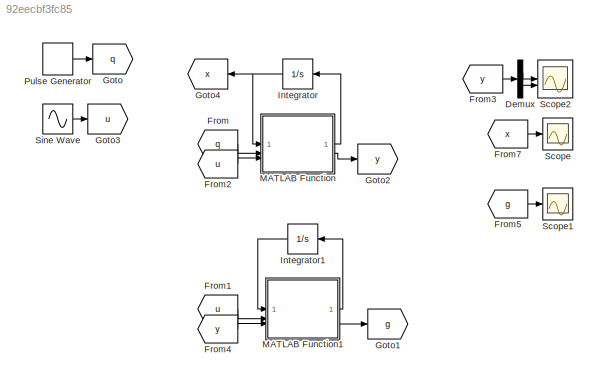
MODEL slx_92eecbf3fc85
KIND model
CONFIG AbsTol = auto
CONFIG EnableMultiTasking = off
CONFIG FixedStep = auto
CONFIG MaxStep = auto
CONFIG MinStep = auto
CONFIG RelTol = 1e-3
CONFIG SampleTimeConstraint = Unconstrained
CONFIG SolverName = VariableStepAuto
CONFIG StartTime = 0.0
CONFIG StopTime = 10.0
BLOCK [Demux] Demux
  Outputs = 2
BLOCK [From] From
  GotoTag = q
BLOCK [From] From1
  GotoTag = u
BLOCK [From] From2
  GotoTag = u
BLOCK [From] From3
  GotoTag = y
BLOCK [From] From4
  GotoTag = y
BLOCK [From] From5
  GotoTag = g
BLOCK [From] From7
  GotoTag = x
BLOCK [Goto] Goto
  GotoTag = q
BLOCK [Goto] Goto1
  GotoTag = g
BLOCK [Goto] Goto2
  GotoTag = y
BLOCK [Goto] Goto3
  GotoTag = u
BLOCK [Goto] Goto4
  GotoTag = x
BLOCK [Integrator] Integrator
  InitialCondition = [0;0;0]
BLOCK [Integrator] Integrator1
  InitialCondition = [0;0]
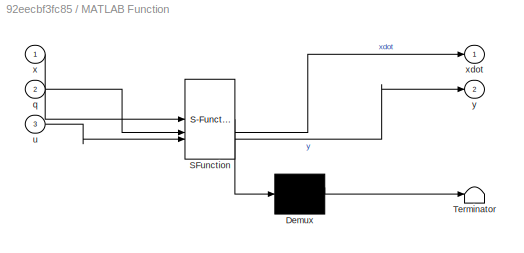
BLOCK [SubSystem] MATLAB Function
  ErrorFcn = Stateflow.Translate.translate
  LibrarySourceBlock = simulink/User-Defined\nFunctions/MATLAB Function
  PermitHierarchicalResolution = ExplicitOnly
  SFBlockType = MATLAB Function
  TreatAsAtomicUnit = on
BLOCK [Demux] MATLAB Function/ Demux 
  Outputs = 1
BLOCK [S-Function] MATLAB Function/ SFunction 
  EnableBusSupport = on
  FunctionName = sf_sfun
  Parameters = A,B,C,L
  PortCounts = [3 3]
  SFcnIsStateOwnerBlock = off
  SFunctionDeploymentMode = off
  Tag = Stateflow S-Function 2
BLOCK [Terminator] MATLAB Function/ Terminator 
BLOCK [Inport] MATLAB Function/q
  Port = 2
BLOCK [Inport] MATLAB Function/u
  Port = 3
BLOCK [Inport] MATLAB Function/x
BLOCK [Outport] MATLAB Function/xdot
BLOCK [Outport] MATLAB Function/y
  Port = 2
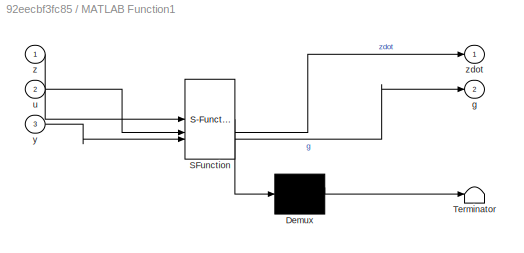
BLOCK [SubSystem] MATLAB Function1
  ErrorFcn = Stateflow.Translate.translate
  LibrarySourceBlock = simulink/User-Defined\nFunctions/MATLAB Function
  PermitHierarchicalResolution = ExplicitOnly
  SFBlockType = MATLAB Function
  TreatAsAtomicUnit = on
BLOCK [Demux] MATLAB Function1/ Demux 
  Outputs = 1
BLOCK [S-Function] MATLAB Function1/ SFunction 
  EnableBusSupport = on
  FunctionName = sf_sfun
  Parameters = E,F,G,M
  PortCounts = [3 3]
  SFcnIsStateOwnerBlock = off
  SFunctionDeploymentMode = off
  Tag = Stateflow S-Function 1
BLOCK [Terminator] MATLAB Function1/ Terminator 
BLOCK [Outport] MATLAB Function1/g
  Port = 2
BLOCK [Inport] MATLAB Function1/u
  Port = 2
BLOCK [Inport] MATLAB Function1/y
  Port = 3
BLOCK [Inport] MATLAB Function1/z
BLOCK [Outport] MATLAB Function1/zdot
BLOCK [DiscretePulseGenerator] Pulse Generator
  Period = 10
  PulseWidth = 5
BLOCK [Scope] Scope
  Floating = off
  NumInputPorts = 1
  ScopeSpecificationString = Simulink.scopes.TimeScopeBlockCfg('CurrentConfiguration', extmgr.ConfigurationSet(extmgr.Configuration('Core','General UI',true),extmgr.Configuration('Core','Source UI',true),extmgr.Configuration('Sources','WiredSimulink',true),extmgr.Configuration('Visuals','Time Domain',true,'SerializedDisplays',{struct('MinYLimReal','-0.12416','MaxYLimReal','1.11742','YLabelReal','','MinYLimMag','0.00000','MaxY...<+1571ch>
BLOCK [Scope] Scope1
  Floating = off
  NumInputPorts = 1
  ScopeSpecificationString = Simulink.scopes.TimeScopeBlockCfg('CurrentConfiguration', extmgr.ConfigurationSet(extmgr.Configuration('Core','General UI',true),extmgr.Configuration('Core','Source UI',true),extmgr.Configuration('Sources','WiredSimulink',true,'DataLoggingVariableName','ScopeData1'),extmgr.Configuration('Visuals','Time Domain',true,'SerializedDisplays',{struct('MinYLimReal','-0.39506','MaxYLimReal','0.39516','YLab...<+1452ch>
BLOCK [Scope] Scope2
  Floating = off
  NumInputPorts = 2
  ScopeSpecificationString = Simulink.scopes.TimeScopeBlockCfg('CurrentConfiguration', extmgr.ConfigurationSet(extmgr.Configuration('Core','General UI',true),extmgr.Configuration('Core','Source UI',true),extmgr.Configuration('Sources','WiredSimulink',true,'DataLoggingVariableName','ScopeData2'),extmgr.Configuration('Visuals','Time Domain',true,'SerializedDisplays',{struct('MinYLimReal','-0.39506','MaxYLimReal','0.39516','YLab...<+2042ch>
BLOCK [Sin] Sine Wave
  SampleTime = 0
LINE Demux:1 -> Scope2:1
LINE Demux:2 -> Scope2:2
LINE From1:1 -> MATLAB Function1:2
LINE From2:1 -> MATLAB Function:3
LINE From3:1 -> Demux:1
LINE From4:1 -> MATLAB Function1:3
LINE From5:1 -> Scope1:1
LINE From7:1 -> Scope:1
LINE From:1 -> MATLAB Function:2
LINE Integrator1:1 -> MATLAB Function1:1
NET Integrator:1 -> Goto4:1, MATLAB Function:1
LINE MATLAB Function1:1 -> Integrator1:1
LINE MATLAB Function1:2 -> Goto1:1
LINE MATLAB Function:1 -> Integrator:1
LINE MATLAB Function:2 -> Goto2:1
LINE Pulse Generator:1 -> Goto:1
LINE Sine Wave:1 -> Goto3:1
note: NET lines group one-source signal fan-out (src -> all destinations, sorted); 1:1 wires keep LINE
CHART MATLAB Function1 states=1 transitions=1
  STATE_LABEL 'eML_blk_kernel()'
  STATE_LABEL 'SCRIPT:\nfunction [zdot,g] = fcn(z,u,y,F, M, G, E)\n\nzdot=F*z+G*u-E*y;\ng=M*z;\n\n'
CHART MATLAB Function states=1 transitions=1
  STATE_LABEL 'eML_blk_kernel()'
  STATE_LABEL 'SCRIPT:\nfunction [xdot,y] = fcn(x,q,u,A, B, C, L)\n\nxdot=A*x+B*u+L*q;\ny=C*x;\n\n'
CHART  states=0 transitions=0
CHART  states=0 transitions=0
